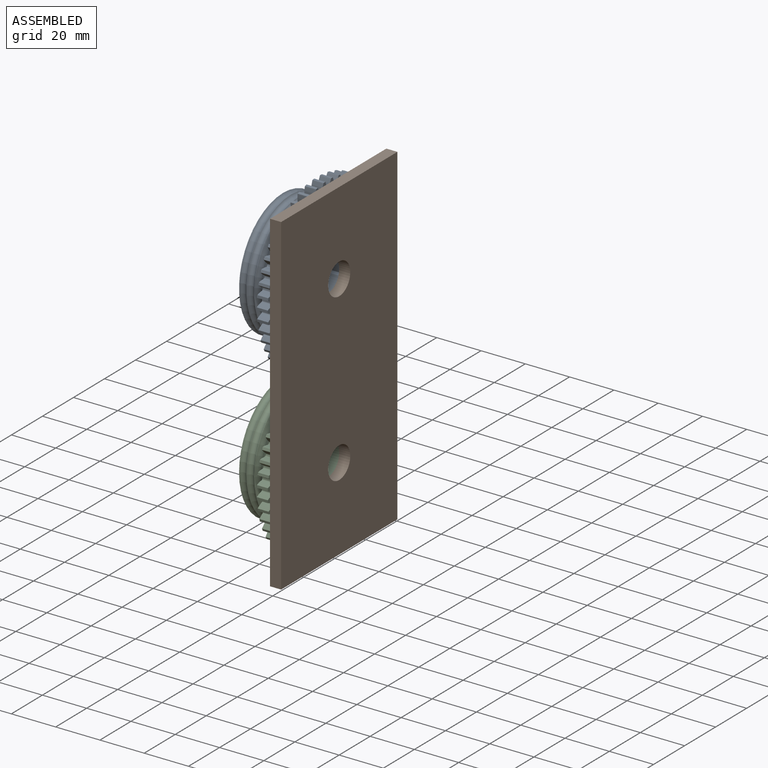
[diagram: assembled view]
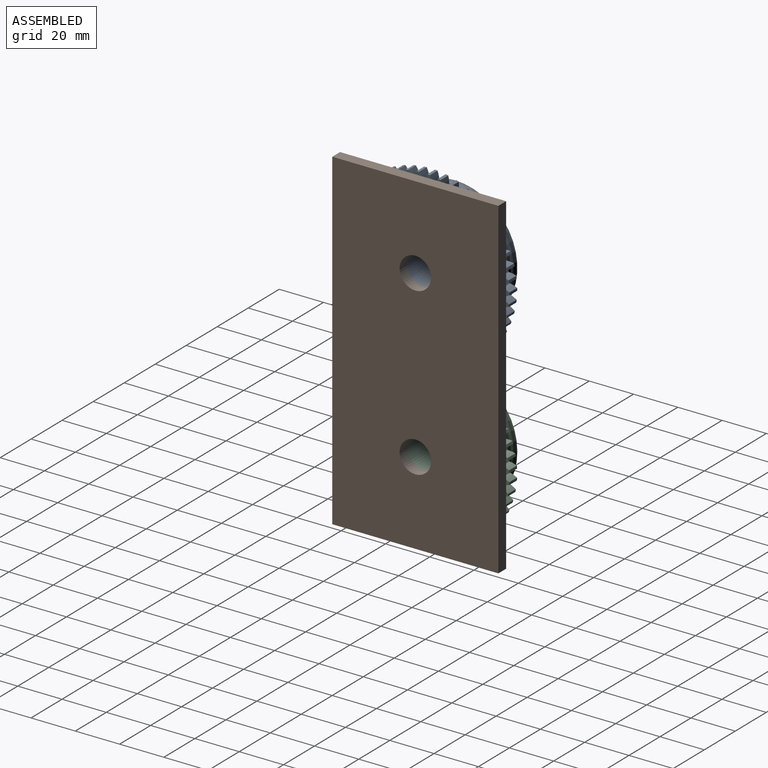
[diagram: assembled view, second angle]
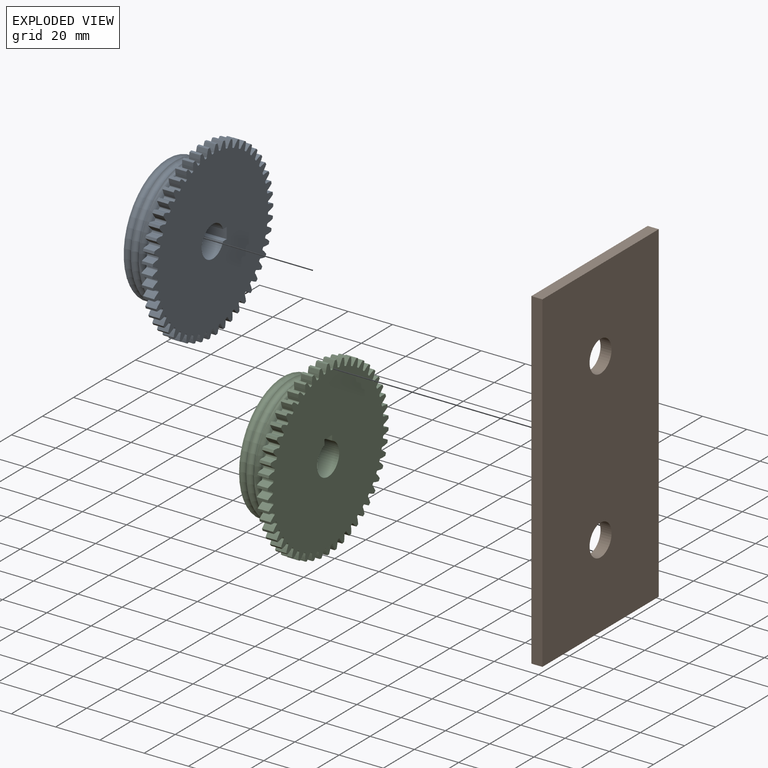
[diagram: exploded view]
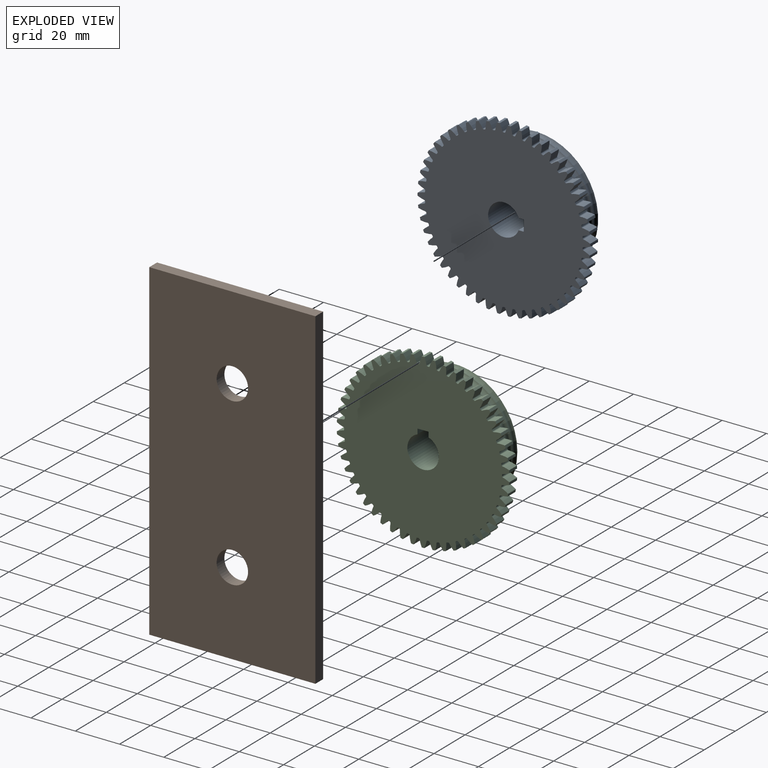
[diagram: exploded view, second angle]
ASSEMBLY  parts=3 mates=2
PART A: 317 faces, bbox 20.5x77.9x78 mm
  f0: cylinder r=7.1mm len=20.5mm, axis (1,0,0), area 809.8mm2, adj f7,f61,f314,f315
  f1: torus R=29mm, axis (-1,0,0), area 754.7mm2, adj f2,f11
  f2: torus R=28.4mm, axis (-1,0,0), area 44.4mm2, adj f1,f3
  f3: torus R=29mm, axis (-1,0,0), area 754.7mm2, adj f2,f4
  f4: torus R=28.4mm, axis (-1,0,0), area 44.4mm2, adj f3,f5
  f5: torus R=29mm, axis (-1,0,0), area 711.4mm2, adj f4,f6
  f6: torus R=28.16mm, axis (-1,0,0), area 47.4mm2, adj f5,f7
  f7: plane 56.33x56.33mm, normal (-1,0,0), area 2323.2mm2, adj f0,f6,f314,f315,f316
  f8: cylinder r=29.75mm len=59.5mm, axis (-1,0,0), area 140.2mm2, adj f9,f63
  f9: torus R=29mm, axis (-1,0,0), area 218.2mm2, adj f8,f10
  f10: torus R=29mm, axis (-1,0,0), area 859mm2, adj f9,f11
  f11: torus R=28.4mm, axis (-1,0,0), area 44.4mm2, adj f1,f10
  f12: cylinder r=39mm len=5mm, axis (-1,0,0), area 5.8mm2, adj f61,f63,f64,f311
  f13: cylinder r=39mm len=5mm, axis (-1,0,0), area 5.8mm2, adj f61,f63,f306,f309
  f14: cylinder r=39mm len=5mm, axis (-1,0,0), area 5.8mm2, adj f61,f63,f301,f304
  f15: cylinder r=39mm len=5mm, axis (-1,0,0), area 5.8mm2, adj f61,f63,f296,f299
  f16: cylinder r=39mm len=5mm, axis (-1,0,0), area 5.8mm2, adj f61,f63,f274,f291
  f17: cylinder r=39mm len=5mm, axis (-1,0,0), area 5.8mm2, adj f61,f63,f286,f289
  f18: cylinder r=39mm len=5mm, axis (-1,0,0), area 5.8mm2, adj f61,f63,f281,f294
  f19: cylinder r=39mm len=5mm, axis (-1,0,0), area 5.8mm2, adj f61,f63,f276,f279
  f20: cylinder r=39mm len=5mm, axis (-1,0,0), area 5.8mm2, adj f61,f63,f271,f284
  f21: cylinder r=39mm len=5mm, axis (-1,0,0), area 5.8mm2, adj f61,f63,f266,f269
  f22: cylinder r=39mm len=5mm, axis (-1,0,0), area 5.8mm2, adj f61,f63,f261,f264
  f23: cylinder r=39mm len=5mm, axis (-1,0,0), area 5.8mm2, adj f61,f63,f256,f259
  f24: cylinder r=39mm len=5mm, axis (-1,0,0), area 5.8mm2, adj f61,f63,f251,f254
  f25: cylinder r=39mm len=5mm, axis (-1,0,0), area 5.8mm2, adj f61,f63,f246,f249
  f26: cylinder r=39mm len=5mm, axis (-1,0,0), area 5.8mm2, adj f61,f63,f241,f244
  f27: cylinder r=39mm len=5mm, axis (-1,0,0), area 5.8mm2, adj f61,f63,f236,f239
  f28: cylinder r=39mm len=5mm, axis (-1,0,0), area 5.8mm2, adj f61,f63,f214,f231
  f29: cylinder r=39mm len=5mm, axis (-1,0,0), area 5.8mm2, adj f61,f63,f226,f229
  f30: cylinder r=39mm len=5mm, axis (-1,0,0), area 5.8mm2, adj f61,f63,f221,f234
  f31: cylinder r=39mm len=5mm, axis (-1,0,0), area 5.8mm2, adj f61,f63,f216,f219
  f32: cylinder r=39mm len=5mm, axis (-1,0,0), area 5.8mm2, adj f61,f63,f211,f224
  f33: cylinder r=39mm len=5mm, axis (-1,0,0), area 5.8mm2, adj f61,f63,f206,f209
  f34: cylinder r=39mm len=5mm, axis (-1,0,0), area 5.8mm2, adj f61,f63,f201,f204
  f35: cylinder r=39mm len=5mm, axis (-1,0,0), area 5.8mm2, adj f61,f63,f196,f199
  f36: cylinder r=39mm len=5mm, axis (-1,0,0), area 5.8mm2, adj f61,f63,f191,f194
  f37: cylinder r=39mm len=5mm, axis (-1,0,0), area 5.8mm2, adj f61,f63,f186,f189
  f38: cylinder r=39mm len=5mm, axis (-1,0,0), area 5.8mm2, adj f61,f63,f181,f184
  f39: cylinder r=39mm len=5mm, axis (-1,0,0), area 5.8mm2, adj f61,f63,f176,f179
  f40: cylinder r=39mm len=5mm, axis (-1,0,0), area 5.8mm2, adj f61,f63,f159,f171
  f41: cylinder r=39mm len=5mm, axis (-1,0,0), area 5.8mm2, adj f61,f63,f166,f169
  f42: cylinder r=39mm len=5mm, axis (-1,0,0), area 5.8mm2, adj f61,f63,f154,f161
  f43: cylinder r=39mm len=5mm, axis (-1,0,0), area 5.8mm2, adj f61,f63,f156,f174
  f44: cylinder r=39mm len=5mm, axis (-1,0,0), area 5.8mm2, adj f61,f63,f151,f164
  f45: cylinder r=39mm len=5mm, axis (-1,0,0), area 5.8mm2, adj f61,f63,f146,f149
  f46: cylinder r=39mm len=5mm, axis (-1,0,0), area 5.8mm2, adj f61,f63,f141,f144
  f47: cylinder r=39mm len=5mm, axis (-1,0,0), area 5.8mm2, adj f61,f63,f136,f139
  f48: cylinder r=39mm len=5mm, axis (-1,0,0), area 5.8mm2, adj f61,f63,f131,f134
  f49: cylinder r=39mm len=5mm, axis (-1,0,0), area 5.8mm2, adj f61,f63,f126,f129
  f50: cylinder r=39mm len=5mm, axis (-1,0,0), area 5.8mm2, adj f61,f63,f121,f124
  f51: cylinder r=39mm len=5mm, axis (-1,0,0), area 5.8mm2, adj f61,f63,f116,f119
  f52: cylinder r=39mm len=5mm, axis (-1,0,0), area 5.8mm2, adj f61,f63,f104,f111
  f53: cylinder r=39mm len=5mm, axis (-1,0,0), area 5.8mm2, adj f61,f63,f99,f106
  f54: cylinder r=39mm len=5mm, axis (-1,0,0), area 5.8mm2, adj f61,f63,f94,f101
  f55: cylinder r=39mm len=5mm, axis (-1,0,0), area 5.8mm2, adj f61,f63,f79,f96
  f56: cylinder r=39mm len=5mm, axis (-1,0,0), area 5.8mm2, adj f61,f63,f91,f114
  f57: cylinder r=39mm len=5mm, axis (-1,0,0), area 5.8mm2, adj f61,f63,f86,f89
  f58: cylinder r=39mm len=5mm, axis (-1,0,0), area 5.8mm2, adj f61,f63,f74,f81
  f59: cylinder r=39mm len=5mm, axis (-1,0,0), area 5.8mm2, adj f61,f63,f76,f84
  f60: cylinder r=39mm len=5mm, axis (-1,0,0), area 5.8mm2, adj f61,f63,f71,f109
  f61: plane 78x77.91mm, normal (1,0,0), area 4224.5mm2, adj f0,f12,f13,f14,f15,f16,f17,f18
  f62: cylinder r=39mm len=5mm, axis (-1,0,0), area 5.8mm2, adj f61,f63,f66,f69
  f63: plane 78x77.91mm, normal (-1,0,0), area 1612.6mm2, adj f8,f12,f13,f14,f15,f16,f17,f18
  f64: extruded ~5x2.93mm, area 15.8mm2, adj f12,f61,f63,f67
  f65: cylinder r=35.62mm len=5mm, axis (-1,0,0), area 2mm2, adj f61,f63,f67,f68
  f66: extruded ~5x2.93mm, area 15.8mm2, adj f61,f62,f63,f68
  f67: cylinder r=0.52mm len=5mm, axis (-1,0,0), area 3.5mm2, adj f61,f63,f64,f65
  f68: cylinder r=0.52mm len=5mm, axis (-1,0,0), area 3.5mm2, adj f61,f63,f65,f66
  f69: extruded ~5x3.05mm, area 15.8mm2, adj f61,f62,f63,f72
  f70: cylinder r=35.62mm len=5mm, axis (-1,0,0), area 2mm2, adj f61,f63,f72,f73
  f71: extruded ~5x2.76mm, area 15.8mm2, adj f60,f61,f63,f73
  f72: cylinder r=0.52mm len=5mm, axis (-1,0,0), area 3.5mm2, adj f61,f63,f69,f70
  f73: cylinder r=0.52mm len=5mm, axis (-1,0,0), area 3.5mm2, adj f61,f63,f70,f71
  f74: extruded ~5x2.76mm, area 15.8mm2, adj f58,f61,f63,f77
  f75: cylinder r=35.62mm len=5mm, axis (-1,0,0), area 2mm2, adj f61,f63,f77,f78
  f76: extruded ~5x3mm, area 15.8mm2, adj f59,f61,f63,f78
  f77: cylinder r=0.52mm len=5mm, axis (-1,0,0), area 3.5mm2, adj f61,f63,f74,f75
  f78: cylinder r=0.52mm len=5mm, axis (-1,0,0), area 3.5mm2, adj f61,f63,f75,f76
  f79: extruded ~5x2.93mm, area 15.8mm2, adj f55,f61,f63,f82
  f80: cylinder r=35.62mm len=5mm, axis (-1,0,0), area 2mm2, adj f61,f63,f82,f83
  f81: extruded ~5x2.85mm, area 15.8mm2, adj f58,f61,f63,f83
  f82: cylinder r=0.52mm len=5mm, axis (-1,0,0), area 3.5mm2, adj f61,f63,f79,f80
  f83: cylinder r=0.52mm len=5mm, axis (-1,0,0), area 3.5mm2, adj f61,f63,f80,f81
  f84: extruded ~5x2.55mm, area 15.8mm2, adj f59,f61,f63,f87
  f85: cylinder r=35.62mm len=5mm, axis (-1,0,0), area 2mm2, adj f61,f63,f87,f88
  f86: extruded ~5x3.1mm, area 15.8mm2, adj f57,f61,f63,f88
  f87: cylinder r=0.52mm len=5mm, axis (-1,0,0), area 3.5mm2, adj f61,f63,f84,f85
  f88: cylinder r=0.52mm len=5mm, axis (-1,0,0), area 3.5mm2, adj f61,f63,f85,f86
  f89: extruded ~5x2.3mm, area 15.8mm2, adj f57,f61,f63,f92
  f90: cylinder r=35.62mm len=5mm, axis (-1,0,0), area 2mm2, adj f61,f63,f92,f93
  f91: extruded ~5x3.15mm, area 15.8mm2, adj f56,f61,f63,f93
  f92: cylinder r=0.52mm len=5mm, axis (-1,0,0), area 3.5mm2, adj f61,f63,f89,f90
  f93: cylinder r=0.52mm len=5mm, axis (-1,0,0), area 3.5mm2, adj f61,f63,f90,f91
  f94: extruded ~5x3.05mm, area 15.8mm2, adj f54,f61,f63,f97
  f95: cylinder r=35.62mm len=5mm, axis (-1,0,0), area 2mm2, adj f61,f63,f97,f98
  f96: extruded ~5x2.66mm, area 15.8mm2, adj f55,f61,f63,f98
  f97: cylinder r=0.52mm len=5mm, axis (-1,0,0), area 3.5mm2, adj f61,f63,f94,f95
  f98: cylinder r=0.52mm len=5mm, axis (-1,0,0), area 3.5mm2, adj f61,f63,f95,f96
  f99: extruded ~5x3.13mm, area 15.8mm2, adj f53,f61,f63,f102
  f100: cylinder r=35.62mm len=5mm, axis (-1,0,0), area 2mm2, adj f61,f63,f102,f103
  f101: extruded ~5x2.43mm, area 15.8mm2, adj f54,f61,f63,f103
  f102: cylinder r=0.52mm len=5mm, axis (-1,0,0), area 3.5mm2, adj f61,f63,f99,f100
  f103: cylinder r=0.52mm len=5mm, axis (-1,0,0), area 3.5mm2, adj f61,f63,f100,f101
  f104: extruded ~5x3.15mm, area 15.8mm2, adj f52,f61,f63,f107
  f105: cylinder r=35.62mm len=5mm, axis (-1,0,0), area 2mm2, adj f61,f63,f107,f108
  f106: extruded ~5x2.3mm, area 15.8mm2, adj f53,f61,f63,f108
  f107: cylinder r=0.52mm len=5mm, axis (-1,0,0), area 3.5mm2, adj f61,f63,f104,f105
  f108: cylinder r=0.52mm len=5mm, axis (-1,0,0), area 3.5mm2, adj f61,f63,f105,f106
  f109: extruded ~5x3.13mm, area 15.8mm2, adj f60,f61,f63,f112
  f110: cylinder r=35.62mm len=5mm, axis (-1,0,0), area 2mm2, adj f61,f63,f112,f113
  f111: extruded ~5x2.55mm, area 15.8mm2, adj f52,f61,f63,f113
  f112: cylinder r=0.52mm len=5mm, axis (-1,0,0), area 3.5mm2, adj f61,f63,f109,f110
  f113: cylinder r=0.52mm len=5mm, axis (-1,0,0), area 3.5mm2, adj f61,f63,f110,f111
  f114: extruded ~5x2.43mm, area 15.8mm2, adj f56,f61,f63,f117
  f115: cylinder r=35.62mm len=5mm, axis (-1,0,0), area 2mm2, adj f61,f63,f117,f118
  f116: extruded ~5x3.15mm, area 15.8mm2, adj f51,f61,f63,f118
  f117: cylinder r=0.52mm len=5mm, axis (-1,0,0), area 3.5mm2, adj f61,f63,f114,f115
  f118: cylinder r=0.52mm len=5mm, axis (-1,0,0), area 3.5mm2, adj f61,f63,f115,f116
  f119: extruded ~5x2.66mm, area 15.8mm2, adj f51,f61,f63,f122
  f120: cylinder r=35.62mm len=5mm, axis (-1,0,0), area 2mm2, adj f61,f63,f122,f123
  f121: extruded ~5x3.1mm, area 15.8mm2, adj f50,f61,f63,f123
  f122: cylinder r=0.52mm len=5mm, axis (-1,0,0), area 3.5mm2, adj f61,f63,f119,f120
  f123: cylinder r=0.52mm len=5mm, axis (-1,0,0), area 3.5mm2, adj f61,f63,f120,f121
  f124: extruded ~5x2.85mm, area 15.8mm2, adj f50,f61,f63,f127
  f125: cylinder r=35.62mm len=5mm, axis (-1,0,0), area 2mm2, adj f61,f63,f127,f128
  f126: extruded ~5x3mm, area 15.8mm2, adj f49,f61,f63,f128
  f127: cylinder r=0.52mm len=5mm, axis (-1,0,0), area 3.5mm2, adj f61,f63,f124,f125
  f128: cylinder r=0.52mm len=5mm, axis (-1,0,0), area 3.5mm2, adj f61,f63,f125,f126
  f129: extruded ~5x3mm, area 15.8mm2, adj f49,f61,f63,f132
  f130: cylinder r=35.62mm len=5mm, axis (-1,0,0), area 2mm2, adj f61,f63,f132,f133
  f131: extruded ~5x2.85mm, area 15.8mm2, adj f48,f61,f63,f133
  f132: cylinder r=0.52mm len=5mm, axis (-1,0,0), area 3.5mm2, adj f61,f63,f129,f130
  f133: cylinder r=0.52mm len=5mm, axis (-1,0,0), area 3.5mm2, adj f61,f63,f130,f131
  f134: extruded ~5x3.1mm, area 15.8mm2, adj f48,f61,f63,f137
  f135: cylinder r=35.62mm len=5mm, axis (-1,0,0), area 2mm2, adj f61,f63,f137,f138
  f136: extruded ~5x2.66mm, area 15.8mm2, adj f47,f61,f63,f138
  f137: cylinder r=0.52mm len=5mm, axis (-1,0,0), area 3.5mm2, adj f61,f63,f134,f135
  f138: cylinder r=0.52mm len=5mm, axis (-1,0,0), area 3.5mm2, adj f61,f63,f135,f136
  f139: extruded ~5x3.15mm, area 15.8mm2, adj f47,f61,f63,f142
  f140: cylinder r=35.62mm len=5mm, axis (-1,0,0), area 2mm2, adj f61,f63,f142,f143
  f141: extruded ~5x2.43mm, area 15.8mm2, adj f46,f61,f63,f143
  f142: cylinder r=0.52mm len=5mm, axis (-1,0,0), area 3.5mm2, adj f61,f63,f139,f140
  f143: cylinder r=0.52mm len=5mm, axis (-1,0,0), area 3.5mm2, adj f61,f63,f140,f141
  f144: extruded ~5x3.15mm, area 15.8mm2, adj f46,f61,f63,f147
  f145: cylinder r=35.62mm len=5mm, axis (-1,0,0), area 2mm2, adj f61,f63,f147,f148
  f146: extruded ~5x2.3mm, area 15.8mm2, adj f45,f61,f63,f148
  f147: cylinder r=0.52mm len=5mm, axis (-1,0,0), area 3.5mm2, adj f61,f63,f144,f145
  f148: cylinder r=0.52mm len=5mm, axis (-1,0,0), area 3.5mm2, adj f61,f63,f145,f146
  f149: extruded ~5x3.1mm, area 15.8mm2, adj f45,f61,f63,f152
  f150: cylinder r=35.62mm len=5mm, axis (-1,0,0), area 2mm2, adj f61,f63,f152,f153
  f151: extruded ~5x2.55mm, area 15.8mm2, adj f44,f61,f63,f153
  f152: cylinder r=0.52mm len=5mm, axis (-1,0,0), area 3.5mm2, adj f61,f63,f149,f150
  f153: cylinder r=0.52mm len=5mm, axis (-1,0,0), area 3.5mm2, adj f61,f63,f150,f151
  f154: extruded ~5x2.43mm, area 15.8mm2, adj f42,f61,f63,f157
  f155: cylinder r=35.62mm len=5mm, axis (-1,0,0), area 2mm2, adj f61,f63,f157,f158
  f156: extruded ~5x3.13mm, area 15.8mm2, adj f43,f61,f63,f158
  f157: cylinder r=0.52mm len=5mm, axis (-1,0,0), area 3.5mm2, adj f61,f63,f154,f155
  f158: cylinder r=0.52mm len=5mm, axis (-1,0,0), area 3.5mm2, adj f61,f63,f155,f156
  f159: extruded ~5x2.66mm, area 15.8mm2, adj f40,f61,f63,f162
  f160: cylinder r=35.62mm len=5mm, axis (-1,0,0), area 2mm2, adj f61,f63,f162,f163
  f161: extruded ~5x3.05mm, area 15.8mm2, adj f42,f61,f63,f163
  f162: cylinder r=0.52mm len=5mm, axis (-1,0,0), area 3.5mm2, adj f61,f63,f159,f160
  f163: cylinder r=0.52mm len=5mm, axis (-1,0,0), area 3.5mm2, adj f61,f63,f160,f161
  f164: extruded ~5x3mm, area 15.8mm2, adj f44,f61,f63,f167
  f165: cylinder r=35.62mm len=5mm, axis (-1,0,0), area 2mm2, adj f61,f63,f167,f168
  f166: extruded ~5x2.76mm, area 15.8mm2, adj f41,f61,f63,f168
  f167: cylinder r=0.52mm len=5mm, axis (-1,0,0), area 3.5mm2, adj f61,f63,f164,f165
  f168: cylinder r=0.52mm len=5mm, axis (-1,0,0), area 3.5mm2, adj f61,f63,f165,f166
  f169: extruded ~5x2.85mm, area 15.8mm2, adj f41,f61,f63,f172
  f170: cylinder r=35.62mm len=5mm, axis (-1,0,0), area 2mm2, adj f61,f63,f172,f173
  f171: extruded ~5x2.93mm, area 15.8mm2, adj f40,f61,f63,f173
  f172: cylinder r=0.52mm len=5mm, axis (-1,0,0), area 3.5mm2, adj f61,f63,f169,f170
  f173: cylinder r=0.52mm len=5mm, axis (-1,0,0), area 3.5mm2, adj f61,f63,f170,f171
  f174: extruded ~5x2.3mm, area 15.8mm2, adj f43,f61,f63,f177
  f175: cylinder r=35.62mm len=5mm, axis (-1,0,0), area 2mm2, adj f61,f63,f177,f178
  f176: extruded ~5x3.15mm, area 15.8mm2, adj f39,f61,f63,f178
  f177: cylinder r=0.52mm len=5mm, axis (-1,0,0), area 3.5mm2, adj f61,f63,f174,f175
  f178: cylinder r=0.52mm len=5mm, axis (-1,0,0), area 3.5mm2, adj f61,f63,f175,f176
  f179: extruded ~5x2.55mm, area 15.8mm2, adj f39,f61,f63,f182
  f180: cylinder r=35.62mm len=5mm, axis (-1,0,0), area 2mm2, adj f61,f63,f182,f183
  f181: extruded ~5x3.13mm, area 15.8mm2, adj f38,f61,f63,f183
  f182: cylinder r=0.52mm len=5mm, axis (-1,0,0), area 3.5mm2, adj f61,f63,f179,f180
  f183: cylinder r=0.52mm len=5mm, axis (-1,0,0), area 3.5mm2, adj f61,f63,f180,f181
  f184: extruded ~5x2.76mm, area 15.8mm2, adj f38,f61,f63,f187
  f185: cylinder r=35.62mm len=5mm, axis (-1,0,0), area 2mm2, adj f61,f63,f187,f188
  f186: extruded ~5x3.05mm, area 15.8mm2, adj f37,f61,f63,f188
  f187: cylinder r=0.52mm len=5mm, axis (-1,0,0), area 3.5mm2, adj f61,f63,f184,f185
  f188: cylinder r=0.52mm len=5mm, axis (-1,0,0), area 3.5mm2, adj f61,f63,f185,f186
  f189: extruded ~5x2.93mm, area 15.8mm2, adj f37,f61,f63,f192
  f190: cylinder r=35.62mm len=5mm, axis (-1,0,0), area 2mm2, adj f61,f63,f192,f193
  f191: extruded ~5x2.93mm, area 15.8mm2, adj f36,f61,f63,f193
  f192: cylinder r=0.52mm len=5mm, axis (-1,0,0), area 3.5mm2, adj f61,f63,f189,f190
  f193: cylinder r=0.52mm len=5mm, axis (-1,0,0), area 3.5mm2, adj f61,f63,f190,f191
  f194: extruded ~5x3.05mm, area 15.8mm2, adj f36,f61,f63,f197
  f195: cylinder r=35.62mm len=5mm, axis (-1,0,0), area 2mm2, adj f61,f63,f197,f198
  f196: extruded ~5x2.76mm, area 15.8mm2, adj f35,f61,f63,f198
  f197: cylinder r=0.52mm len=5mm, axis (-1,0,0), area 3.5mm2, adj f61,f63,f194,f195
  f198: cylinder r=0.52mm len=5mm, axis (-1,0,0), area 3.5mm2, adj f61,f63,f195,f196
  f199: extruded ~5x3.13mm, area 15.8mm2, adj f35,f61,f63,f202
  f200: cylinder r=35.62mm len=5mm, axis (-1,0,0), area 2mm2, adj f61,f63,f202,f203
  f201: extruded ~5x2.55mm, area 15.8mm2, adj f34,f61,f63,f203
  f202: cylinder r=0.52mm len=5mm, axis (-1,0,0), area 3.5mm2, adj f61,f63,f199,f200
  f203: cylinder r=0.52mm len=5mm, axis (-1,0,0), area 3.5mm2, adj f61,f63,f200,f201
  f204: extruded ~5x3.15mm, area 15.8mm2, adj f34,f61,f63,f207
  f205: cylinder r=35.62mm len=5mm, axis (-1,0,0), area 2mm2, adj f61,f63,f207,f208
  f206: extruded ~5x2.3mm, area 15.8mm2, adj f33,f61,f63,f208
  f207: cylinder r=0.52mm len=5mm, axis (-1,0,0), area 3.5mm2, adj f61,f63,f204,f205
  f208: cylinder r=0.52mm len=5mm, axis (-1,0,0), area 3.5mm2, adj f61,f63,f205,f206
  f209: extruded ~5x3.13mm, area 15.8mm2, adj f33,f61,f63,f212
  f210: cylinder r=35.62mm len=5mm, axis (-1,0,0), area 2mm2, adj f61,f63,f212,f213
  f211: extruded ~5x2.43mm, area 15.8mm2, adj f32,f61,f63,f213
  f212: cylinder r=0.52mm len=5mm, axis (-1,0,0), area 3.5mm2, adj f61,f63,f209,f210
  f213: cylinder r=0.52mm len=5mm, axis (-1,0,0), area 3.5mm2, adj f61,f63,f210,f211
  f214: extruded ~5x2.76mm, area 15.8mm2, adj f28,f61,f63,f217
  f215: cylinder r=35.62mm len=5mm, axis (-1,0,0), area 2mm2, adj f61,f63,f217,f218
  f216: extruded ~5x3mm, area 15.8mm2, adj f31,f61,f63,f218
  f217: cylinder r=0.52mm len=5mm, axis (-1,0,0), area 3.5mm2, adj f61,f63,f214,f215
  f218: cylinder r=0.52mm len=5mm, axis (-1,0,0), area 3.5mm2, adj f61,f63,f215,f216
  f219: extruded ~5x2.55mm, area 15.8mm2, adj f31,f61,f63,f222
  f220: cylinder r=35.62mm len=5mm, axis (-1,0,0), area 2mm2, adj f61,f63,f222,f223
  f221: extruded ~5x3.1mm, area 15.8mm2, adj f30,f61,f63,f223
  f222: cylinder r=0.52mm len=5mm, axis (-1,0,0), area 3.5mm2, adj f61,f63,f219,f220
  f223: cylinder r=0.52mm len=5mm, axis (-1,0,0), area 3.5mm2, adj f61,f63,f220,f221
  f224: extruded ~5x3.05mm, area 15.8mm2, adj f32,f61,f63,f227
  f225: cylinder r=35.62mm len=5mm, axis (-1,0,0), area 2mm2, adj f61,f63,f227,f228
  f226: extruded ~5x2.66mm, area 15.8mm2, adj f29,f61,f63,f228
  f227: cylinder r=0.52mm len=5mm, axis (-1,0,0), area 3.5mm2, adj f61,f63,f224,f225
  f228: cylinder r=0.52mm len=5mm, axis (-1,0,0), area 3.5mm2, adj f61,f63,f225,f226
  f229: extruded ~5x2.93mm, area 15.8mm2, adj f29,f61,f63,f232
  f230: cylinder r=35.62mm len=5mm, axis (-1,0,0), area 2mm2, adj f61,f63,f232,f233
  f231: extruded ~5x2.85mm, area 15.8mm2, adj f28,f61,f63,f233
  f232: cylinder r=0.52mm len=5mm, axis (-1,0,0), area 3.5mm2, adj f61,f63,f229,f230
  f233: cylinder r=0.52mm len=5mm, axis (-1,0,0), area 3.5mm2, adj f61,f63,f230,f231
  f234: extruded ~5x2.3mm, area 15.8mm2, adj f30,f61,f63,f237
  f235: cylinder r=35.62mm len=5mm, axis (-1,0,0), area 2mm2, adj f61,f63,f237,f238
  f236: extruded ~5x3.15mm, area 15.8mm2, adj f27,f61,f63,f238
  f237: cylinder r=0.52mm len=5mm, axis (-1,0,0), area 3.5mm2, adj f61,f63,f234,f235
  f238: cylinder r=0.52mm len=5mm, axis (-1,0,0), area 3.5mm2, adj f61,f63,f235,f236
  f239: extruded ~5x2.43mm, area 15.8mm2, adj f27,f61,f63,f242
  f240: cylinder r=35.62mm len=5mm, axis (-1,0,0), area 2mm2, adj f61,f63,f242,f243
  f241: extruded ~5x3.15mm, area 15.8mm2, adj f26,f61,f63,f243
  f242: cylinder r=0.52mm len=5mm, axis (-1,0,0), area 3.5mm2, adj f61,f63,f239,f240
  f243: cylinder r=0.52mm len=5mm, axis (-1,0,0), area 3.5mm2, adj f61,f63,f240,f241
  f244: extruded ~5x2.66mm, area 15.8mm2, adj f26,f61,f63,f247
  f245: cylinder r=35.62mm len=5mm, axis (-1,0,0), area 2mm2, adj f61,f63,f247,f248
  f246: extruded ~5x3.1mm, area 15.8mm2, adj f25,f61,f63,f248
  f247: cylinder r=0.52mm len=5mm, axis (-1,0,0), area 3.5mm2, adj f61,f63,f244,f245
  f248: cylinder r=0.52mm len=5mm, axis (-1,0,0), area 3.5mm2, adj f61,f63,f245,f246
  f249: extruded ~5x2.85mm, area 15.8mm2, adj f25,f61,f63,f252
  f250: cylinder r=35.62mm len=5mm, axis (-1,0,0), area 2mm2, adj f61,f63,f252,f253
  f251: extruded ~5x3mm, area 15.8mm2, adj f24,f61,f63,f253
  f252: cylinder r=0.52mm len=5mm, axis (-1,0,0), area 3.5mm2, adj f61,f63,f249,f250
  f253: cylinder r=0.52mm len=5mm, axis (-1,0,0), area 3.5mm2, adj f61,f63,f250,f251
  f254: extruded ~5x3mm, area 15.8mm2, adj f24,f61,f63,f257
  f255: cylinder r=35.62mm len=5mm, axis (-1,0,0), area 2mm2, adj f61,f63,f257,f258
  f256: extruded ~5x2.85mm, area 15.8mm2, adj f23,f61,f63,f258
  f257: cylinder r=0.52mm len=5mm, axis (-1,0,0), area 3.5mm2, adj f61,f63,f254,f255
  f258: cylinder r=0.52mm len=5mm, axis (-1,0,0), area 3.5mm2, adj f61,f63,f255,f256
  f259: extruded ~5x3.1mm, area 15.8mm2, adj f23,f61,f63,f262
  f260: cylinder r=35.62mm len=5mm, axis (-1,0,0), area 2mm2, adj f61,f63,f262,f263
  f261: extruded ~5x2.66mm, area 15.8mm2, adj f22,f61,f63,f263
  f262: cylinder r=0.52mm len=5mm, axis (-1,0,0), area 3.5mm2, adj f61,f63,f259,f260
  f263: cylinder r=0.52mm len=5mm, axis (-1,0,0), area 3.5mm2, adj f61,f63,f260,f261
  f264: extruded ~5x3.15mm, area 15.8mm2, adj f22,f61,f63,f267
  f265: cylinder r=35.62mm len=5mm, axis (-1,0,0), area 2mm2, adj f61,f63,f267,f268
  f266: extruded ~5x2.43mm, area 15.8mm2, adj f21,f61,f63,f268
  f267: cylinder r=0.52mm len=5mm, axis (-1,0,0), area 3.5mm2, adj f61,f63,f264,f265
  f268: cylinder r=0.52mm len=5mm, axis (-1,0,0), area 3.5mm2, adj f61,f63,f265,f266
  f269: extruded ~5x3.15mm, area 15.8mm2, adj f21,f61,f63,f272
  f270: cylinder r=35.62mm len=5mm, axis (-1,0,0), area 2mm2, adj f61,f63,f272,f273
  f271: extruded ~5x2.3mm, area 15.8mm2, adj f20,f61,f63,f273
  f272: cylinder r=0.52mm len=5mm, axis (-1,0,0), area 3.5mm2, adj f61,f63,f269,f270
  f273: cylinder r=0.52mm len=5mm, axis (-1,0,0), area 3.5mm2, adj f61,f63,f270,f271
  f274: extruded ~5x2.85mm, area 15.8mm2, adj f16,f61,f63,f277
  f275: cylinder r=35.62mm len=5mm, axis (-1,0,0), area 2mm2, adj f61,f63,f277,f278
  f276: extruded ~5x2.93mm, area 15.8mm2, adj f19,f61,f63,f278
  f277: cylinder r=0.52mm len=5mm, axis (-1,0,0), area 3.5mm2, adj f61,f63,f274,f275
  f278: cylinder r=0.52mm len=5mm, axis (-1,0,0), area 3.5mm2, adj f61,f63,f275,f276
  f279: extruded ~5x2.66mm, area 15.8mm2, adj f19,f61,f63,f282
  f280: cylinder r=35.62mm len=5mm, axis (-1,0,0), area 2mm2, adj f61,f63,f282,f283
  f281: extruded ~5x3.05mm, area 15.8mm2, adj f18,f61,f63,f283
  f282: cylinder r=0.52mm len=5mm, axis (-1,0,0), area 3.5mm2, adj f61,f63,f279,f280
  f283: cylinder r=0.52mm len=5mm, axis (-1,0,0), area 3.5mm2, adj f61,f63,f280,f281
  f284: extruded ~5x3.1mm, area 15.8mm2, adj f20,f61,f63,f287
  f285: cylinder r=35.62mm len=5mm, axis (-1,0,0), area 2mm2, adj f61,f63,f287,f288
  f286: extruded ~5x2.55mm, area 15.8mm2, adj f17,f61,f63,f288
  f287: cylinder r=0.52mm len=5mm, axis (-1,0,0), area 3.5mm2, adj f61,f63,f284,f285
  f288: cylinder r=0.52mm len=5mm, axis (-1,0,0), area 3.5mm2, adj f61,f63,f285,f286
  f289: extruded ~5x3mm, area 15.8mm2, adj f17,f61,f63,f292
  f290: cylinder r=35.62mm len=5mm, axis (-1,0,0), area 2mm2, adj f61,f63,f292,f293
  f291: extruded ~5x2.76mm, area 15.8mm2, adj f16,f61,f63,f293
  f292: cylinder r=0.52mm len=5mm, axis (-1,0,0), area 3.5mm2, adj f61,f63,f289,f290
  f293: cylinder r=0.52mm len=5mm, axis (-1,0,0), area 3.5mm2, adj f61,f63,f290,f291
  f294: extruded ~5x2.43mm, area 15.8mm2, adj f18,f61,f63,f297
  f295: cylinder r=35.62mm len=5mm, axis (-1,0,0), area 2mm2, adj f61,f63,f297,f298
  f296: extruded ~5x3.13mm, area 15.8mm2, adj f15,f61,f63,f298
  f297: cylinder r=0.52mm len=5mm, axis (-1,0,0), area 3.5mm2, adj f61,f63,f294,f295
  f298: cylinder r=0.52mm len=5mm, axis (-1,0,0), area 3.5mm2, adj f61,f63,f295,f296
  f299: extruded ~5x2.3mm, area 15.8mm2, adj f15,f61,f63,f302
  f300: cylinder r=35.62mm len=5mm, axis (-1,0,0), area 2mm2, adj f61,f63,f302,f303
  f301: extruded ~5x3.15mm, area 15.8mm2, adj f14,f61,f63,f303
  f302: cylinder r=0.52mm len=5mm, axis (-1,0,0), area 3.5mm2, adj f61,f63,f299,f300
  f303: cylinder r=0.52mm len=5mm, axis (-1,0,0), area 3.5mm2, adj f61,f63,f300,f301
  f304: extruded ~5x2.55mm, area 15.8mm2, adj f14,f61,f63,f307
  f305: cylinder r=35.62mm len=5mm, axis (-1,0,0), area 2mm2, adj f61,f63,f307,f308
  f306: extruded ~5x3.13mm, area 15.8mm2, adj f13,f61,f63,f308
  f307: cylinder r=0.52mm len=5mm, axis (-1,0,0), area 3.5mm2, adj f61,f63,f304,f305
  f308: cylinder r=0.52mm len=5mm, axis (-1,0,0), area 3.5mm2, adj f61,f63,f305,f306
  f309: extruded ~5x2.76mm, area 15.8mm2, adj f13,f61,f63,f312
  f310: cylinder r=35.62mm len=5mm, axis (-1,0,0), area 2mm2, adj f61,f63,f312,f313
  f311: extruded ~5x3.05mm, area 15.8mm2, adj f12,f61,f63,f313
  f312: cylinder r=0.52mm len=5mm, axis (-1,0,0), area 3.5mm2, adj f61,f63,f309,f310
  f313: cylinder r=0.52mm len=5mm, axis (-1,0,0), area 3.5mm2, adj f61,f63,f310,f311
  f314: plane 20.5x2.35mm, normal (0,-1,0), area 48.3mm2, adj f0,f7,f61,f316
  f315: plane 20.5x2.35mm, normal (0,1,0), area 48.3mm2, adj f0,f7,f61,f316
  f316: plane 20.5x5mm, normal (0,0,-1), area 102.5mm2, adj f7,f61,f314,f315
PART B: 8 faces, bbox 150x75x5 mm
  f0: plane 150x5mm, normal (0,-1,0), area 750mm2, adj f1,f3,f4,f5
  f1: plane 75x5mm, normal (1,0,0), area 375mm2, adj f0,f2,f4,f5
  f2: plane 150x5mm, normal (0,1,0), area 750mm2, adj f1,f3,f4,f5
  f3: plane 75x5mm, normal (-1,0,0), area 375mm2, adj f0,f2,f4,f5
  f4: plane 150x75mm, normal (0,0,1), area 10933.3mm2, adj f0,f1,f2,f3,f6,f7
  f5: plane 150x75mm, normal (0,0,-1), area 10933.3mm2, adj f0,f1,f2,f3,f6,f7
  f6: cylinder r=7.1mm len=14.2mm, axis (0,0,-1), area 223.1mm2, adj f4,f5
  f7: cylinder r=7.1mm len=14.2mm, axis (0,0,-1), area 223.1mm2, adj f4,f5
PART C: same geometry as A
PLACE A rot(axis=(-1,0,0),90deg) t=(-45.58,-43.39,53.94)mm
PLACE B rot(axis=(-0.71,0,0.71),180deg) t=(-35.58,-43.39,16.44)mm
PLACE C t=(-45.58,-43.39,-21.06)mm
MATE revolute B.f6 <-> C.f12  axis (-1,0,0) through (-40.58,-43.39,-21.06)mm
MATE revolute A.f12 <-> B.f7  axis (1,0,0) through (-40.58,-43.39,53.94)mm
